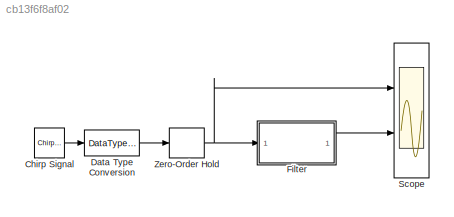
MODEL slx_cb13f6f8af02
KIND model
CONFIG AbsTol = auto
CONFIG FixedStep = auto
CONFIG MaxStep = auto
CONFIG MinStep = auto
CONFIG RelTol = 1e-3
CONFIG SampleTimeConstraint = Unconstrained
CONFIG Solver = FixedStepDiscrete
CONFIG SolverMode = SingleTasking
CONFIG SolverName = FixedStepDiscrete
CONFIG StartTime = 0.0
CONFIG StopTime = 10.0
BLOCK [Reference] Chirp Signal  REF=simulink/Sources/Chirp Signal
  Ports = [0, 1]
  SourceBlock = simulink/Sources/Chirp Signal
  SourceType = chirp
BLOCK [DataTypeConversion] Data Type Conversion
  OutDataTypeStr = fixdt(1,16,14)
  RndMeth = Nearest
  SaturateOnIntegerOverflow = off
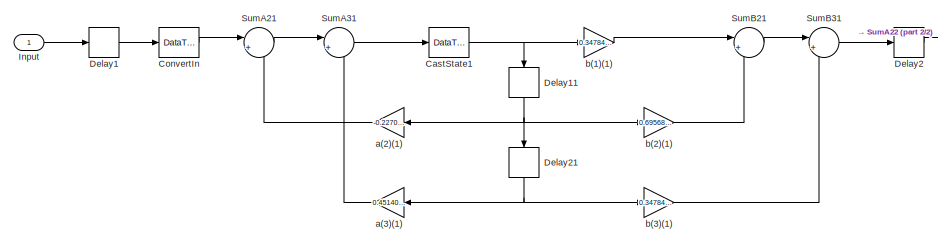
[diagram: Filter - part 1/2, left side, full height]
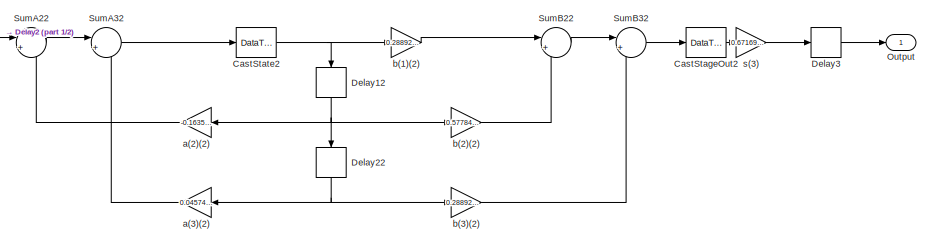
[diagram: Filter - part 2/2, right side, full height]
BLOCK [SubSystem] Filter
  ErrorFcn = dspFilterRealizedInBasicElemsAlgLoopErrFcnCallback
  Ports = [1, 1]
  RequestExecContextInheritance = off
  Tag = FilterWizardSubSystem
  UserDataPersistent = on
  Variant = off
BLOCK [DataTypeConversion] Filter/CastStageOut2
  OutDataTypeStr = fixdt(1,16,11)
  RndMeth = Nearest
  SaturateOnIntegerOverflow = off
BLOCK [DataTypeConversion] Filter/CastState1
  OutDataTypeStr = fixdt(1,18,16)
  RndMeth = Nearest
  SaturateOnIntegerOverflow = off
BLOCK [DataTypeConversion] Filter/CastState2
  OutDataTypeStr = fixdt(1,18,16)
  RndMeth = Nearest
  SaturateOnIntegerOverflow = off
BLOCK [DataTypeConversion] Filter/ConvertIn
  OutDataTypeStr = fixdt(1,16,14)
  RndMeth = Nearest
BLOCK [Delay] Filter/Delay1
  DelayLength = 1
  InitialCondition = 0
  InputPortMap = u0
  Ports = [1, 1]
BLOCK [Delay] Filter/Delay11
  DelayLength = 1
  InitialCondition = 0
  InputPortMap = u0
  Ports = [1, 1]
BLOCK [Delay] Filter/Delay12
  DelayLength = 1
  InitialCondition = 0
  InputPortMap = u0
  Ports = [1, 1]
BLOCK [Delay] Filter/Delay2
  DelayLength = 1
  InitialCondition = 0
  InputPortMap = u0
  Ports = [1, 1]
BLOCK [Delay] Filter/Delay21
  DelayLength = 1
  InitialCondition = 0
  InputPortMap = u0
  Ports = [1, 1]
BLOCK [Delay] Filter/Delay22
  DelayLength = 1
  InitialCondition = 0
  InputPortMap = u0
  Ports = [1, 1]
BLOCK [Delay] Filter/Delay3
  DelayLength = 1
  InitialCondition = 0
  InputPortMap = u0
  Ports = [1, 1]
BLOCK [Inport] Filter/Input
  IconDisplay = Port number
BLOCK [Outport] Filter/Output
  IconDisplay = Port number
BLOCK [Sum] Filter/SumA21
  AccumDataTypeStr = fixdt(1,36,30)
  IconShape = round
  InputSameDT = off
  Inputs = |+-
  OutDataTypeStr = fixdt(1,36,30)
  Ports = [2, 1]
  RndMeth = Nearest
  SaturateOnIntegerOverflow = off
BLOCK [Sum] Filter/SumA22
  AccumDataTypeStr = fixdt(1,36,30)
  IconShape = round
  InputSameDT = off
  Inputs = |+-
  OutDataTypeStr = fixdt(1,36,30)
  Ports = [2, 1]
  RndMeth = Nearest
  SaturateOnIntegerOverflow = off
BLOCK [Sum] Filter/SumA31
  AccumDataTypeStr = fixdt(1,36,30)
  IconShape = round
  InputSameDT = off
  Inputs = |+-
  OutDataTypeStr = fixdt(1,36,30)
  Ports = [2, 1]
  RndMeth = Nearest
  SaturateOnIntegerOverflow = off
BLOCK [Sum] Filter/SumA32
  AccumDataTypeStr = fixdt(1,36,30)
  IconShape = round
  InputSameDT = off
  Inputs = |+-
  OutDataTypeStr = fixdt(1,36,30)
  Ports = [2, 1]
  RndMeth = Nearest
  SaturateOnIntegerOverflow = off
BLOCK [Sum] Filter/SumB21
  AccumDataTypeStr = fixdt(1,36,31)
  IconShape = round
  InputSameDT = off
  Inputs = |++
  OutDataTypeStr = fixdt(1,36,31)
  Ports = [2, 1]
  RndMeth = Nearest
  SaturateOnIntegerOverflow = off
BLOCK [Sum] Filter/SumB22
  AccumDataTypeStr = fixdt(1,36,31)
  IconShape = round
  InputSameDT = off
  Inputs = |++
  OutDataTypeStr = fixdt(1,36,31)
  Ports = [2, 1]
  RndMeth = Nearest
  SaturateOnIntegerOverflow = off
BLOCK [Sum] Filter/SumB31
  AccumDataTypeStr = fixdt(1,36,31)
  IconShape = round
  InputSameDT = off
  Inputs = |++
  OutDataTypeStr = fixdt(1,36,31)
  Ports = [2, 1]
  RndMeth = Nearest
  SaturateOnIntegerOverflow = off
BLOCK [Sum] Filter/SumB32
  AccumDataTypeStr = fixdt(1,36,31)
  IconShape = round
  InputSameDT = off
  Inputs = |++
  OutDataTypeStr = fixdt(1,36,31)
  Ports = [2, 1]
  RndMeth = Nearest
  SaturateOnIntegerOverflow = off
BLOCK [Gain] Filter/a(2)(1)
  Gain = -0.22705028708083497
  OutDataTypeStr = fixdt(1,34,30)
  ParamDataTypeStr = fixdt(1,16,14)
  RndMeth = Nearest
  SaturateOnIntegerOverflow = off
BLOCK [Gain] Filter/a(2)(2)
  Gain = -0.16359116611362662
  OutDataTypeStr = fixdt(1,34,30)
  ParamDataTypeStr = fixdt(1,16,14)
  RndMeth = Nearest
  SaturateOnIntegerOverflow = off
BLOCK [Gain] Filter/a(3)(1)
  Gain = 0.4514083390923061
  OutDataTypeStr = fixdt(1,34,30)
  ParamDataTypeStr = fixdt(1,16,14)
  RndMeth = Nearest
  SaturateOnIntegerOverflow = off
BLOCK [Gain] Filter/a(3)(2)
  Gain = 0.045748876831938463
  OutDataTypeStr = fixdt(1,34,30)
  ParamDataTypeStr = fixdt(1,16,14)
  RndMeth = Nearest
  SaturateOnIntegerOverflow = off
BLOCK [Gain] Filter/b(1)(1)
  Gain = 0.34784206664151029
  OutDataTypeStr = fixdt(1,34,31)
  ParamDataTypeStr = fixdt(1,16,15)
  RndMeth = Nearest
  SaturateOnIntegerOverflow = off
BLOCK [Gain] Filter/b(1)(2)
  Gain = 0.28892330312812808
  OutDataTypeStr = fixdt(1,34,31)
  ParamDataTypeStr = fixdt(1,16,15)
  RndMeth = Nearest
  SaturateOnIntegerOverflow = off
BLOCK [Gain] Filter/b(2)(1)
  Gain = 0.69568413328302059
  OutDataTypeStr = fixdt(1,34,31)
  ParamDataTypeStr = fixdt(1,16,15)
  RndMeth = Nearest
  SaturateOnIntegerOverflow = off
BLOCK [Gain] Filter/b(2)(2)
  Gain = 0.57784660625625617
  OutDataTypeStr = fixdt(1,34,31)
  ParamDataTypeStr = fixdt(1,16,15)
  RndMeth = Nearest
  SaturateOnIntegerOverflow = off
BLOCK [Gain] Filter/b(3)(1)
  Gain = 0.34784206664151029
  OutDataTypeStr = fixdt(1,34,31)
  ParamDataTypeStr = fixdt(1,16,15)
  RndMeth = Nearest
  SaturateOnIntegerOverflow = off
BLOCK [Gain] Filter/b(3)(2)
  Gain = 0.28892330312812808
  OutDataTypeStr = fixdt(1,34,31)
  ParamDataTypeStr = fixdt(1,16,15)
  RndMeth = Nearest
  SaturateOnIntegerOverflow = off
BLOCK [Gain] Filter/s(3)
  Gain = 0.67169175843588547
  OutDataTypeStr = fixdt(1,18,13)
  ParamDataTypeStr = fixdt(1,16,15)
  RndMeth = Nearest
  SaturateOnIntegerOverflow = off
BLOCK [Scope] Scope
  NumInputPorts = 2
  Ports = [2]
  ScopeSpecificationString = Simulink.scopes.TimeScopeBlockCfg('CurrentConfiguration', extmgr.ConfigurationSet(extmgr.Configuration('Core','General UI',true),extmgr.Configuration('Core','Source UI',true),extmgr.Configuration('Sources','WiredSimulink',true,'DataLoggingSaveFormat','StructureWithTime','DataLoggingDecimation','1','DataLoggingDecimateData',true),extmgr.Configuration('Visuals','Time Domain',true,'SerializedDisplays...<+2376ch>
BLOCK [ZeroOrderHold] Zero-Order Hold
  SampleTime = 1/1000
LINE Chirp Signal:1 -> Data Type Conversion:1
LINE Data Type Conversion:1 -> Zero-Order Hold:1
LINE Filter/CastStageOut2:1 -> Filter/s(3):1
NET Filter/CastState1:1 -> Filter/Delay11:1, Filter/b(1)(1):1
NET Filter/CastState2:1 -> Filter/Delay12:1, Filter/b(1)(2):1
LINE Filter/ConvertIn:1 -> Filter/SumA21:1
NET Filter/Delay11:1 -> Filter/Delay21:1, Filter/a(2)(1):1, Filter/b(2)(1):1
NET Filter/Delay12:1 -> Filter/Delay22:1, Filter/a(2)(2):1, Filter/b(2)(2):1
LINE Filter/Delay1:1 -> Filter/ConvertIn:1
NET Filter/Delay21:1 -> Filter/a(3)(1):1, Filter/b(3)(1):1
NET Filter/Delay22:1 -> Filter/a(3)(2):1, Filter/b(3)(2):1
LINE Filter/Delay2:1 -> Filter/SumA22:1
LINE Filter/Delay3:1 -> Filter/Output:1
LINE Filter/Input:1 -> Filter/Delay1:1
LINE Filter/SumA21:1 -> Filter/SumA31:1
LINE Filter/SumA22:1 -> Filter/SumA32:1
LINE Filter/SumA31:1 -> Filter/CastState1:1
LINE Filter/SumA32:1 -> Filter/CastState2:1
LINE Filter/SumB21:1 -> Filter/SumB31:1
LINE Filter/SumB22:1 -> Filter/SumB32:1
LINE Filter/SumB31:1 -> Filter/Delay2:1
LINE Filter/SumB32:1 -> Filter/CastStageOut2:1
LINE Filter/a(2)(1):1 -> Filter/SumA21:2
LINE Filter/a(2)(2):1 -> Filter/SumA22:2
LINE Filter/a(3)(1):1 -> Filter/SumA31:2
LINE Filter/a(3)(2):1 -> Filter/SumA32:2
LINE Filter/b(1)(1):1 -> Filter/SumB21:1
LINE Filter/b(1)(2):1 -> Filter/SumB22:1
LINE Filter/b(2)(1):1 -> Filter/SumB21:2
LINE Filter/b(2)(2):1 -> Filter/SumB22:2
LINE Filter/b(3)(1):1 -> Filter/SumB31:2
LINE Filter/b(3)(2):1 -> Filter/SumB32:2
LINE Filter/s(3):1 -> Filter/Delay3:1
LINE Filter:1 -> Scope:2
NET Zero-Order Hold:1 -> Filter:1, Scope:1
note: NET lines group one-source signal fan-out (src -> all destinations, sorted); 1:1 wires keep LINE
